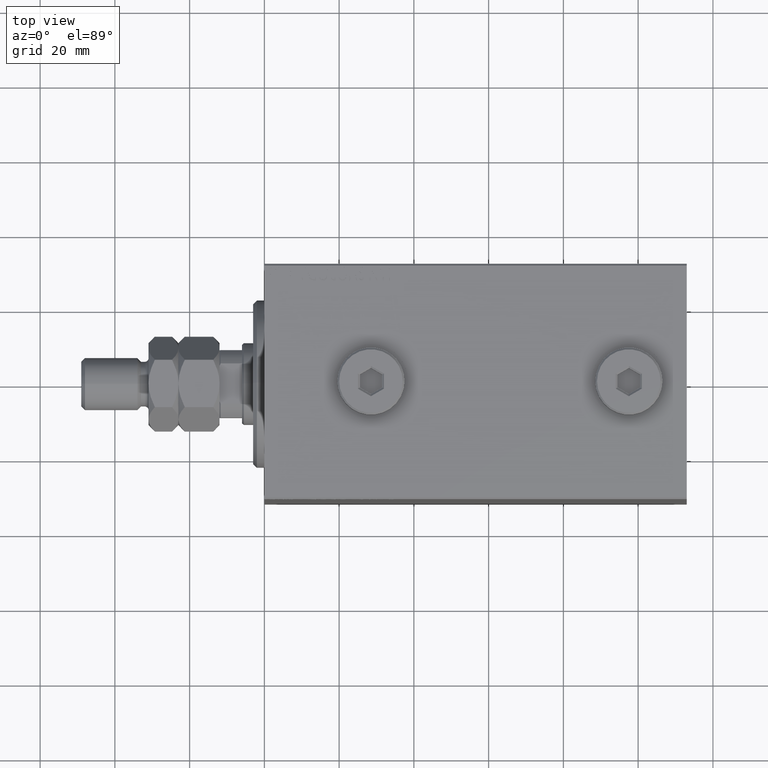
[diagram: clean part render]
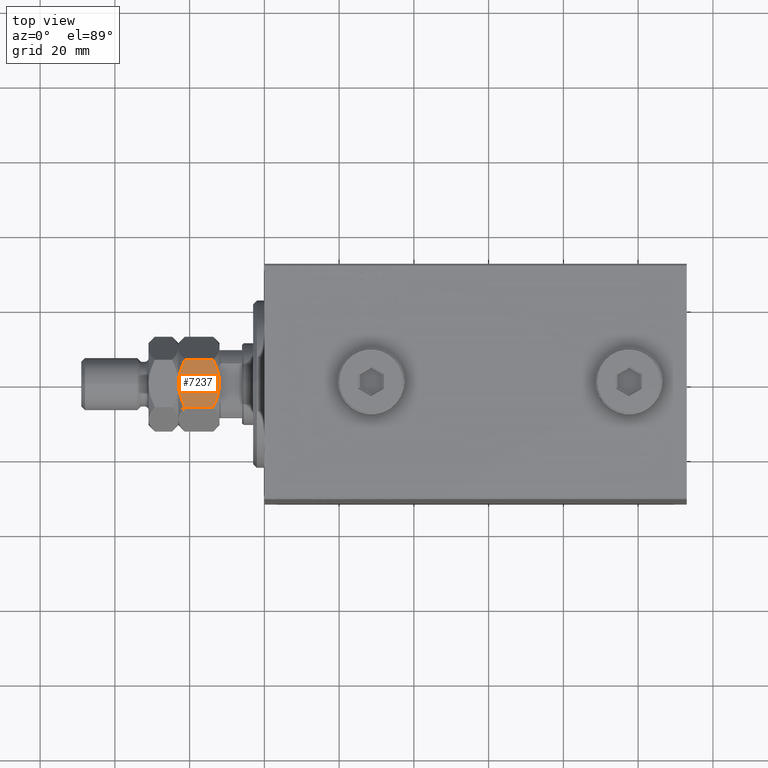
[diagram: same view with one face highlighted and labeled with its STEP entity id]
A machine part, top view. The second image highlights one B-rep face of the part: STEP entity #7237.
In plain terms, the highlighted planar face has unit normal (0, 0, -1).
Its self-contained STEP definition (entity closure, byte-faithful):
#228 = CARTESIAN_POINT ( 'NONE',  ( 11.00000000000000178, 1.099784029505284533, 10.95829822225798189 ) ) ;
#476 = CARTESIAN_POINT ( 'NONE',  ( 11.00000000000000000, -6.350852961085885262, 1.701705922171761864 ) ) ;
#522 = CARTESIAN_POINT ( 'NONE',  ( 10.99999999999999822, -5.856287164594791150, 9.545576976073807174 ) ) ;
#1716 = CARTESIAN_POINT ( 'NONE',  ( 11.00000000000000000, 1.102880524211967916, 0.05171427369706949051 ) ) ;
#2381 = EDGE_CURVE ( 'NONE', #29065, #6101, #35735, .T. ) ;
#2423 = CARTESIAN_POINT ( 'NONE',  ( 11.00000000000000000, 6.350852961085883486, 1.701705922171761198 ) ) ;
#2688 = ORIENTED_EDGE ( 'NONE', *, *, #2381, .F. ) ;
#3960 = ORIENTED_EDGE ( 'NONE', *, *, #22058, .T. ) ;
#5003 = CARTESIAN_POINT ( 'NONE',  ( 11.00000000000000178, -4.344649988696088094, 0.7819333922108973045 ) ) ;
#5303 = CARTESIAN_POINT ( 'NONE',  ( 11.00000000000000000, 2.743986917173864448, 0.3257244675391384736 ) ) ;
#6101 = VERTEX_POINT ( 'NONE', #31858 ) ;
#6353 = B_SPLINE_CURVE_WITH_KNOTS ( 'NONE', 3,
 ( #41034, #522, #18648, #40334, #37466, #44397, #11732, #19355, #15073, #8384, #7925, #11493 ),
 .UNSPECIFIED., .F., .F.,
 ( 4, 2, 2, 2, 2, 4 ),
 ( 0.01886453216956117396, 0.02051917601608021016, 0.02217381986259924637, 0.02382846370911827910, 0.02465578563237779547, 0.02548310755563731531 ),
 .UNSPECIFIED. ) ;
#6553 = CARTESIAN_POINT ( 'NONE',  ( 11.00000000000000000, 6.350852961085883486, 1.701705922171761198 ) ) ;
#7237 = ADVANCED_FACE ( 'NONE', ( #13034 ), #19494, .F. ) ;
#7403 = CARTESIAN_POINT ( 'NONE',  ( 11.00000000000000178, 4.344649988696087206, 10.21806660778910114 ) ) ;
#7925 = CARTESIAN_POINT ( 'NONE',  ( 11.00000000000000000, -0.2746235576716405391, 11.00000000000000355 ) ) ;
#8384 = CARTESIAN_POINT ( 'NONE',  ( 11.00000000000000178, -0.5501206218979368678, 10.98970138300551191 ) ) ;
#10560 = CARTESIAN_POINT ( 'NONE',  ( 11.00000000000000000, -6.350852961085885262, 11.00000000000000000 ) ) ;
#11448 = CARTESIAN_POINT ( 'NONE',  ( 11.00000000000000000, -2.731989201781026111, 0.3224669455115847794 ) ) ;
#11493 = CARTESIAN_POINT ( 'NONE',  ( 10.99999999999999467, 0.000000000000000000, 11.00000000000000000 ) ) ;
#11706 = CARTESIAN_POINT ( 'NONE',  ( 11.00000000000000000, 6.350852961085883486, 9.298294077828240134 ) ) ;
#11732 = CARTESIAN_POINT ( 'NONE',  ( 10.99999999999999822, -2.205563362884370271, 10.79423439979603039 ) ) ;
#11924 = CARTESIAN_POINT ( 'NONE',  ( 11.00000000000000000, -5.363576505757326807, 1.208067694507484413 ) ) ;
#12460 = ORIENTED_EDGE ( 'NONE', *, *, #22426, .F. ) ;
#13034 = FACE_OUTER_BOUND ( 'NONE', #27245, .T. ) ;
#13166 = CARTESIAN_POINT ( 'NONE',  ( 11.00000000000000178, 1.381217716854154398, 0.08304699151390024237 ) ) ;
#13334 = CARTESIAN_POINT ( 'NONE',  ( 10.99999999999999467, 0.000000000000000000, 11.00000000000000000 ) ) ;
#13394 = VERTEX_POINT ( 'NONE', #11706 ) ;
#15031 = CARTESIAN_POINT ( 'NONE',  ( 10.99999999999999645, -2.189438957741031366, 0.2028253662507153998 ) ) ;
#15073 = CARTESIAN_POINT ( 'NONE',  ( 11.00000000000000000, -1.102880524211969027, 10.94828572630293273 ) ) ;
#15732 = VECTOR ( 'NONE', #24650, 1000.000000000000000 ) ;
#15957 = B_SPLINE_CURVE_WITH_KNOTS ( 'NONE', 3,
 ( #36254, #32674, #228, #47205, #29575, #7403, #43646, #33391 ),
 .UNSPECIFIED., .F., .F.,
 ( 4, 2, 2, 4 ),
 ( 0.02548310755563731531, 0.02714502201312677526, 0.02880693647061623522, 0.03213076538559515860 ),
 .UNSPECIFIED. ) ;
#16265 = CARTESIAN_POINT ( 'NONE',  ( 10.99999999999999822, 0.5501206218979356466, 0.01029861699449337656 ) ) ;
#16793 = ORIENTED_EDGE ( 'NONE', *, *, #37637, .F. ) ;
#16975 = CARTESIAN_POINT ( 'NONE',  ( 11.00000000000000000, 0.000000000000000000, 0.000000000000000000 ) ) ;
#17019 = LINE ( 'NONE', #10560, #15732 ) ;
#17813 = AXIS2_PLACEMENT_3D ( 'NONE', #45458, #30688, #23767 ) ;
#18367 = VECTOR ( 'NONE', #25824, 1000.000000000000000 ) ;
#18648 = CARTESIAN_POINT ( 'NONE',  ( 11.00000000000000178, -5.349315167928747172, 9.777295308501312121 ) ) ;
#18677 = CARTESIAN_POINT ( 'NONE',  ( 11.00000000000000000, -6.350852961085885262, 9.298294077828238358 ) ) ;
#19355 = CARTESIAN_POINT ( 'NONE',  ( 11.00000000000000178, -1.381217716854154398, 10.91695300848610017 ) ) ;
#19494 = PLANE ( 'NONE',  #17813 ) ;
#22058 = EDGE_CURVE ( 'NONE', #30832, #6101, #17019, .T. ) ;
#22426 = EDGE_CURVE ( 'NONE', #41638, #13394, #15957, .T. ) ;
#23427 = CARTESIAN_POINT ( 'NONE',  ( 11.00000000000000178, 5.856287164594785821, 1.454423023926191938 ) ) ;
#23767 = DIRECTION ( 'NONE',  ( 0.000000000000000000, 0.000000000000000000, 1.000000000000000000 ) ) ;
#24650 = DIRECTION ( 'NONE',  ( -0.000000000000000000, -0.000000000000000000, -1.000000000000000000 ) ) ;
#25824 = DIRECTION ( 'NONE',  ( -0.000000000000000000, -0.000000000000000000, -1.000000000000000000 ) ) ;
#26226 = CARTESIAN_POINT ( 'NONE',  ( 11.00000000000000178, -1.099784029505286975, 0.04170177774201815762 ) ) ;
#27245 = EDGE_LOOP ( 'NONE', ( #41366, #16793, #12460, #42059, #3960, #2688 ) ) ;
#27574 = VERTEX_POINT ( 'NONE', #6553 ) ;
#27705 = CARTESIAN_POINT ( 'NONE',  ( 10.99999999999999822, 0.2746235576716393179, 8.470329472542994146E-18 ) ) ;
#28934 = CARTESIAN_POINT ( 'NONE',  ( 11.00000000000000000, 6.350852961085883486, 11.00000000000000000 ) ) ;
#29065 = VERTEX_POINT ( 'NONE', #29370 ) ;
#29370 = CARTESIAN_POINT ( 'NONE',  ( 11.00000000000000000, 0.000000000000000000, 0.000000000000000000 ) ) ;
#29575 = CARTESIAN_POINT ( 'NONE',  ( 11.00000000000000000, 2.731989201781026555, 10.67753305448841772 ) ) ;
#30033 = EDGE_CURVE ( 'NONE', #30832, #41638, #6353, .T. ) ;
#30040 = CARTESIAN_POINT ( 'NONE',  ( 11.00000000000000000, 0.000000000000000000, 0.000000000000000000 ) ) ;
#30578 = CARTESIAN_POINT ( 'NONE',  ( 11.00000000000000000, 3.802713407336413276, 0.6276910765349043020 ) ) ;
#30688 = DIRECTION ( 'NONE',  ( -1.000000000000000000, 0.000000000000000000, 0.000000000000000000 ) ) ;
#30832 = VERTEX_POINT ( 'NONE', #18677 ) ;
#31288 = CARTESIAN_POINT ( 'NONE',  ( 11.00000000000000000, 5.349315167928744508, 1.222704691498689877 ) ) ;
#31858 = CARTESIAN_POINT ( 'NONE',  ( 11.00000000000000000, -6.350852961085885262, 1.701705922171761864 ) ) ;
#32674 = CARTESIAN_POINT ( 'NONE',  ( 11.00000000000000178, 0.5516605423237666006, 11.00000000000000355 ) ) ;
#33391 = CARTESIAN_POINT ( 'NONE',  ( 11.00000000000000000, 6.350852961085883486, 9.298294077828240134 ) ) ;
#35040 = B_SPLINE_CURVE_WITH_KNOTS ( 'NONE', 3,
 ( #2423, #23427, #31288, #45824, #30578, #5303, #37728, #13166, #1716, #16265, #27705, #16975 ),
 .UNSPECIFIED., .F., .F.,
 ( 4, 2, 2, 2, 2, 4 ),
 ( 0.01886453216956117396, 0.02051917601608021016, 0.02217381986259924290, 0.02382846370911827910, 0.02465578563237779547, 0.02548310755563731184 ),
 .UNSPECIFIED. ) ;
#35735 = B_SPLINE_CURVE_WITH_KNOTS ( 'NONE', 3,
 ( #30040, #44583, #26226, #15031, #11448, #5003, #11924, #476 ),
 .UNSPECIFIED., .F., .F.,
 ( 4, 2, 2, 4 ),
 ( 0.02548310755563731184, 0.02714502201312677179, 0.02880693647061623175, 0.03213076538559515166 ),
 .UNSPECIFIED. ) ;
#36254 = CARTESIAN_POINT ( 'NONE',  ( 10.99999999999999467, 0.000000000000000000, 11.00000000000000000 ) ) ;
#36790 = LINE ( 'NONE', #28934, #18367 ) ;
#37466 = CARTESIAN_POINT ( 'NONE',  ( 11.00000000000000000, -3.802713407336412832, 10.37230892346509847 ) ) ;
#37637 = EDGE_CURVE ( 'NONE', #13394, #27574, #36790, .T. ) ;
#37728 = CARTESIAN_POINT ( 'NONE',  ( 11.00000000000000000, 2.205563362884370715, 0.2057656002039678633 ) ) ;
#40334 = CARTESIAN_POINT ( 'NONE',  ( 10.99999999999999822, -4.323029509133800907, 10.19034626474623551 ) ) ;
#41034 = CARTESIAN_POINT ( 'NONE',  ( 11.00000000000000000, -6.350852961085885262, 9.298294077828238358 ) ) ;
#41366 = ORIENTED_EDGE ( 'NONE', *, *, #45806, .F. ) ;
#41638 = VERTEX_POINT ( 'NONE', #13334 ) ;
#42059 = ORIENTED_EDGE ( 'NONE', *, *, #30033, .F. ) ;
#43646 = CARTESIAN_POINT ( 'NONE',  ( 10.99999999999999822, 5.363576505757325918, 9.791932305492514033 ) ) ;
#44397 = CARTESIAN_POINT ( 'NONE',  ( 11.00000000000000355, -2.743986917173864892, 10.67427553246086447 ) ) ;
#44583 = CARTESIAN_POINT ( 'NONE',  ( 10.99999999999999822, -0.5516605423237674888, 3.811648262644349985E-18 ) ) ;
#45458 = CARTESIAN_POINT ( 'NONE',  ( 11.00000000000000000, -6.350852961085885262, 11.00000000000000000 ) ) ;
#45806 = EDGE_CURVE ( 'NONE', #27574, #29065, #35040, .T. ) ;
#45824 = CARTESIAN_POINT ( 'NONE',  ( 10.99999999999999822, 4.323029509133802684, 0.8096537352537666044 ) ) ;
#47205 = CARTESIAN_POINT ( 'NONE',  ( 10.99999999999999822, 2.189438957741029590, 10.79717463374928421 ) ) ;